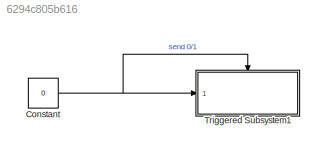
MODEL slx_6294c805b616
KIND model
BLOCK [Constant] Constant
  Value = 0
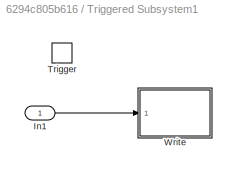
BLOCK [SubSystem] Triggered Subsystem1
  Ports = [1, 0, 0, 1]
  RequestExecContextInheritance = off
  TreatAsAtomicUnit = on
BLOCK [Inport] Triggered Subsystem1/In1
  IconDisplay = Port number
BLOCK [TriggerPort] Triggered Subsystem1/Trigger
  PortDimensions = 1
  Ports = []
  StatesWhenEnabling = held
  TriggerType = either
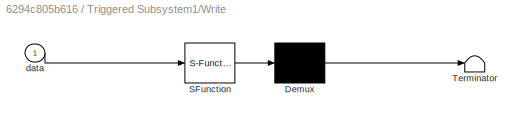
BLOCK [SubSystem] Triggered Subsystem1/Write
  ErrorFcn = Stateflow.Translate.translate
  PermitHierarchicalResolution = ExplicitOnly
  Ports = [1]
  RequestExecContextInheritance = off
  SFBlockType = MATLAB Function
  TreatAsAtomicUnit = on
BLOCK [Demux] Triggered Subsystem1/Write/ Demux 
  Outputs = 1
  Ports = [1, 1]
BLOCK [S-Function] Triggered Subsystem1/Write/ SFunction 
  EnableBusSupport = on
  FunctionName = sf_sfun
  PortCounts = [1 1]
  Ports = [1, 1]
  Tag = Stateflow S-Function callZumoExtrinsic_runMotors 1
BLOCK [Terminator] Triggered Subsystem1/Write/ Terminator 
BLOCK [Inport] Triggered Subsystem1/Write/data
  IconDisplay = Port number
NET Constant:1 -> Triggered Subsystem1:1, Triggered Subsystem1:trigger
LINE Triggered Subsystem1/In1:1 -> Triggered Subsystem1/Write:1
note: NET lines group one-source signal fan-out (src -> all destinations, sorted); 1:1 wires keep LINE
